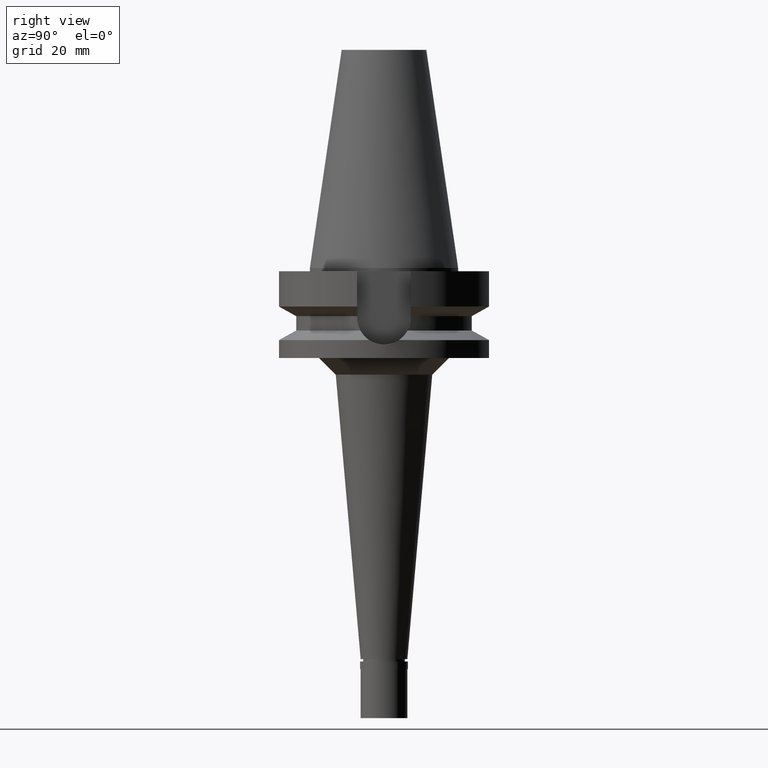
[diagram: clean part render]
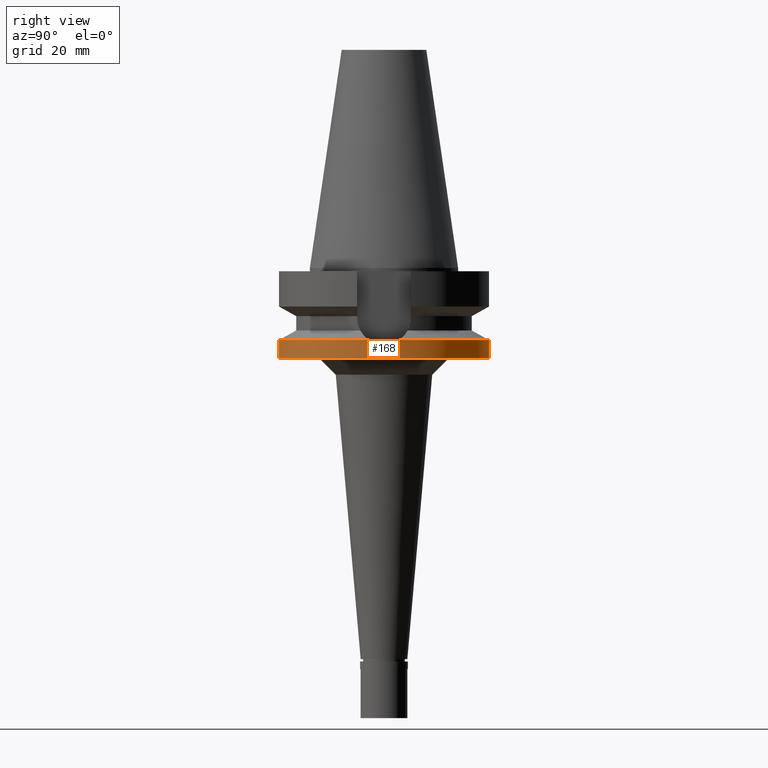
[diagram: same view with one face highlighted and labeled with its STEP entity id]
A machine part, right view. The second image highlights one B-rep face of the part: STEP entity #168.
In plain terms, the highlighted cylindrical surface (partial cylindrical patch) has radius 31.5 mm, axis along (0, 0, -1).
Its self-contained STEP definition (entity closure, byte-faithful):
#2 = CARTESIAN_POINT ( 'NONE',  ( 0.0000000000000000000, 31.50000000000000000, -27.00000000000000000 ) ) ;
#12 = CARTESIAN_POINT ( 'NONE',  ( 31.50000000000000000, -0.7653339292132839145, -23.00000000000000000 ) ) ;
#59 = CARTESIAN_POINT ( 'NONE',  ( 31.40202800534093441, -2.481444114041156279, -22.60822717364504086 ) ) ;
#73 = VERTEX_POINT ( 'NONE', #1928 ) ;
#122 = CARTESIAN_POINT ( 'NONE',  ( 0.0000000000000000000, -31.50000000000000000, -21.63449434733000132 ) ) ;
#132 = CIRCLE ( 'NONE', #2199, 31.50000000000000000 ) ;
#168 = ADVANCED_FACE ( 'NONE', ( #1588 ), #1367, .T. ) ;
#174 = CARTESIAN_POINT ( 'NONE',  ( 31.17899877608999759, -4.485536235554000051, -21.63449434733000132 ) ) ;
#188 = VECTOR ( 'NONE', #2132, 1000.000000000000000 ) ;
#208 = DIRECTION ( 'NONE',  ( 0.0000000000000000000, 0.0000000000000000000, -1.000000000000000000 ) ) ;
#268 = ORIENTED_EDGE ( 'NONE', *, *, #2694, .T. ) ;
#277 = CARTESIAN_POINT ( 'NONE',  ( 31.41021379343086295, -2.375151714568919825, -22.64163681815551854 ) ) ;
#308 = CARTESIAN_POINT ( 'NONE',  ( 0.0000000000000000000, 2.145826121465999692E-14, -27.00000000000000000 ) ) ;
#310 = CARTESIAN_POINT ( 'NONE',  ( 31.50000000000000000, 0.3826410995669720094, -23.00000000000000000 ) ) ;
#328 = CARTESIAN_POINT ( 'NONE',  ( 31.50000000000000000, 0.0000000000000000000, -23.00000000000000000 ) ) ;
#371 = AXIS2_PLACEMENT_3D ( 'NONE', #1750, #1687, #830 ) ;
#372 = EDGE_LOOP ( 'NONE', ( #1054, #1095, #702, #2816, #268, #2860, #2399 ) ) ;
#396 = CARTESIAN_POINT ( 'NONE',  ( 31.17899877608999759, 4.485536235554000051, -21.63449434733000132 ) ) ;
#504 = CARTESIAN_POINT ( 'NONE',  ( 31.27810260519907359, -3.746773085555736849, -22.08603405617476767 ) ) ;
#551 = CARTESIAN_POINT ( 'NONE',  ( 31.38990831240688095, -2.631613843629407423, -22.55865027481118545 ) ) ;
#581 = CARTESIAN_POINT ( 'NONE',  ( 31.43706933494274480, 1.991945618470973844, -22.75079906707211563 ) ) ;
#673 = DIRECTION ( 'NONE',  ( 0.9898094849552905306, -0.1423979757318985240, 0.0000000000000000000 ) ) ;
#702 = ORIENTED_EDGE ( 'NONE', *, *, #1340, .T. ) ;
#737 = CARTESIAN_POINT ( 'NONE',  ( 31.40780107371747576, -2.406948783686259308, -22.63179417457589793 ) ) ;
#787 = CARTESIAN_POINT ( 'NONE',  ( 0.0000000000000000000, 31.50000000000000000, -21.63449434733000132 ) ) ;
#830 = DIRECTION ( 'NONE',  ( 0.0000000000000000000, 1.000000000000000000, 0.0000000000000000000 ) ) ;
#839 = EDGE_CURVE ( 'NONE', #2412, #1241, #1863, .T. ) ;
#842 = CARTESIAN_POINT ( 'NONE',  ( 31.41960269202027334, 2.247715309199418865, -22.67990300501071133 ) ) ;
#902 = CARTESIAN_POINT ( 'NONE',  ( 31.41695943491941989, 2.284197526813180001, -22.66913871892451127 ) ) ;
#940 = DIRECTION ( 'NONE',  ( 0.0000000000000000000, -1.000000000000000000, 0.0000000000000000000 ) ) ;
#971 = CARTESIAN_POINT ( 'NONE',  ( 31.41248069583260616, -2.345008849045444155, -22.65088272112437551 ) ) ;
#977 = VERTEX_POINT ( 'NONE', #396 ) ;
#984 = CARTESIAN_POINT ( 'NONE',  ( 31.17899877608999759, -4.485536235554000051, -21.63449434733000132 ) ) ;
#1043 = DIRECTION ( 'NONE',  ( 0.0000000000000000000, -1.105773104655000034E-13, -1.000000000000000000 ) ) ;
#1054 = ORIENTED_EDGE ( 'NONE', *, *, #2449, .T. ) ;
#1057 = VERTEX_POINT ( 'NONE', #174 ) ;
#1095 = ORIENTED_EDGE ( 'NONE', *, *, #1437, .T. ) ;
#1104 = B_SPLINE_CURVE_WITH_KNOTS ( 'NONE', 3,
 ( #984, #1682, #504, #1697, #1226, #2608, #551, #59, #737, #277, #1199, #971, #1915, #12, #1456 ),
 .UNSPECIFIED., .F., .F.,
 ( 4, 2, 2, 1, 1, 1, 2, 2, 4 ),
 ( 0.0000000000000000000, 0.2500000000000054956, 0.3750000000000083822, 0.4375000000000101585, 0.4687500000000116573, 0.4843750000000125455, 0.4921875000000124345, 0.5000000000000123235, 1.000000000000000000 ),
 .UNSPECIFIED. ) ;
#1114 = CARTESIAN_POINT ( 'NONE',  ( 31.42562226952463078, 2.162530034250089717, -22.70438244337352529 ) ) ;
#1199 = CARTESIAN_POINT ( 'NONE',  ( 31.41180861714025596, -2.353982790969676664, -22.64814182965239198 ) ) ;
#1226 = CARTESIAN_POINT ( 'NONE',  ( 31.35448268466037192, -3.025770148964570083, -22.41207090075617003 ) ) ;
#1229 = CARTESIAN_POINT ( 'NONE',  ( 31.49278214594326286, 0.7712514760915274437, -22.97267231922544894 ) ) ;
#1241 = VERTEX_POINT ( 'NONE', #2 ) ;
#1248 = CARTESIAN_POINT ( 'NONE',  ( 31.46210626620209894, 1.552337941303047364, -22.85144425601687246 ) ) ;
#1285 = EDGE_CURVE ( 'NONE', #1057, #73, #1104, .T. ) ;
#1332 = CARTESIAN_POINT ( 'NONE',  ( 0.0000000000000000000, 2.145826121465999692E-14, 75.21999999999999886 ) ) ;
#1340 = EDGE_CURVE ( 'NONE', #2184, #1241, #132, .T. ) ;
#1357 = CARTESIAN_POINT ( 'NONE',  ( 31.36323119517905766, 3.008315199666787176, -22.45004444764630236 ) ) ;
#1367 = CYLINDRICAL_SURFACE ( 'NONE', #2863, 31.50000000000000000 ) ;
#1437 = EDGE_CURVE ( 'NONE', #1502, #2184, #2664, .T. ) ;
#1456 = CARTESIAN_POINT ( 'NONE',  ( 31.50000000000000000, 0.0000000000000000000, -23.00000000000000000 ) ) ;
#1502 = VERTEX_POINT ( 'NONE', #2678 ) ;
#1513 = CARTESIAN_POINT ( 'NONE',  ( 31.41416941625874060, 2.322264553253584829, -22.65776938924310357 ) ) ;
#1527 = CARTESIAN_POINT ( 'NONE',  ( 31.41518316614764927, 2.308512963548423169, -22.66190176290050573 ) ) ;
#1549 = CARTESIAN_POINT ( 'NONE',  ( 0.0000000000000000000, 0.0000000000000000000, -21.63449434733000132 ) ) ;
#1572 = CIRCLE ( 'NONE', #2673, 31.50000000000001421 ) ;
#1588 = FACE_OUTER_BOUND ( 'NONE', #372, .T. ) ;
#1682 = CARTESIAN_POINT ( 'NONE',  ( 31.23204665212880826, -4.116800018714492637, -21.88192961708649875 ) ) ;
#1687 = DIRECTION ( 'NONE',  ( 0.0000000000000000000, 0.0000000000000000000, -1.000000000000000000 ) ) ;
#1697 = CARTESIAN_POINT ( 'NONE',  ( 31.33669865035164293, -3.204466084995118980, -22.33739431474310422 ) ) ;
#1750 = CARTESIAN_POINT ( 'NONE',  ( 0.0000000000000000000, 0.0000000000000000000, -21.63449434733000132 ) ) ;
#1762 = CARTESIAN_POINT ( 'NONE',  ( 31.28510220343601844, 3.748010450973932262, -22.12940068721394127 ) ) ;
#1791 = DIRECTION ( 'NONE',  ( 0.0000000000000000000, -1.000000000000000000, 0.0000000000000000000 ) ) ;
#1863 = LINE ( 'NONE', #787, #188 ) ;
#1915 = CARTESIAN_POINT ( 'NONE',  ( 31.47112765223344155, -1.555185600637041698, -22.89003262685971052 ) ) ;
#1928 = CARTESIAN_POINT ( 'NONE',  ( 31.50000000000000000, 0.0000000000000000000, -23.00000000000000000 ) ) ;
#1932 = CARTESIAN_POINT ( 'NONE',  ( 31.44586609457440574, 1.845454247446294493, -22.78625020174317939 ) ) ;
#2131 = CARTESIAN_POINT ( 'NONE',  ( 31.47112858377302302, 1.356751589209624909, -22.88729331198218375 ) ) ;
#2132 = DIRECTION ( 'NONE',  ( 0.0000000000000000000, 1.099151708819000049E-13, -1.000000000000000000 ) ) ;
#2139 = CARTESIAN_POINT ( 'NONE',  ( 0.0000000000000000000, -31.50000000000000000, -27.00000000000000000 ) ) ;
#2184 = VERTEX_POINT ( 'NONE', #2139 ) ;
#2199 = AXIS2_PLACEMENT_3D ( 'NONE', #308, #2306, #940 ) ;
#2219 = CARTESIAN_POINT ( 'NONE',  ( 31.17899877608999759, 4.485536235554000051, -21.63449434733000132 ) ) ;
#2306 = DIRECTION ( 'NONE',  ( 0.0000000000000000000, 0.0000000000000000000, 1.000000000000000000 ) ) ;
#2399 = ORIENTED_EDGE ( 'NONE', *, *, #1285, .F. ) ;
#2412 = VERTEX_POINT ( 'NONE', #2458 ) ;
#2449 = EDGE_CURVE ( 'NONE', #1057, #1502, #1572, .T. ) ;
#2458 = CARTESIAN_POINT ( 'NONE',  ( 0.0000000000000000000, 31.50000000000000000, -21.63449434733000132 ) ) ;
#2573 = VECTOR ( 'NONE', #1043, 1000.000000000000000 ) ;
#2608 = CARTESIAN_POINT ( 'NONE',  ( 31.37853676501025646, -2.762248391873738829, -22.51183215908421431 ) ) ;
#2664 = LINE ( 'NONE', #122, #2573 ) ;
#2673 = AXIS2_PLACEMENT_3D ( 'NONE', #1549, #2689, #673 ) ;
#2678 = CARTESIAN_POINT ( 'NONE',  ( 0.0000000000000000000, -31.50000000000000000, -21.63449434733000132 ) ) ;
#2689 = DIRECTION ( 'NONE',  ( 0.0000000000000000000, 0.0000000000000000000, -1.000000000000000000 ) ) ;
#2694 = EDGE_CURVE ( 'NONE', #2412, #977, #2722, .T. ) ;
#2722 = CIRCLE ( 'NONE', #371, 31.50000000000000000 ) ;
#2755 = EDGE_CURVE ( 'NONE', #73, #977, #2827, .T. ) ;
#2816 = ORIENTED_EDGE ( 'NONE', *, *, #839, .F. ) ;
#2827 = B_SPLINE_CURVE_WITH_KNOTS ( 'NONE', 3,
 ( #328, #310, #1229, #2131, #1248, #1932, #581, #1114, #842, #902, #1527, #1513, #1357, #1762, #2219 ),
 .UNSPECIFIED., .F., .F.,
 ( 4, 2, 2, 1, 1, 1, 2, 2, 4 ),
 ( 0.0000000000000000000, 0.2500000000000032196, 0.3750000000000049405, 0.4375000000000058287, 0.4687500000000062172, 0.4843750000000065503, 0.4921875000000065503, 0.5000000000000065503, 1.000000000000000000 ),
 .UNSPECIFIED. ) ;
#2860 = ORIENTED_EDGE ( 'NONE', *, *, #2755, .F. ) ;
#2863 = AXIS2_PLACEMENT_3D ( 'NONE', #1332, #208, #1791 ) ;